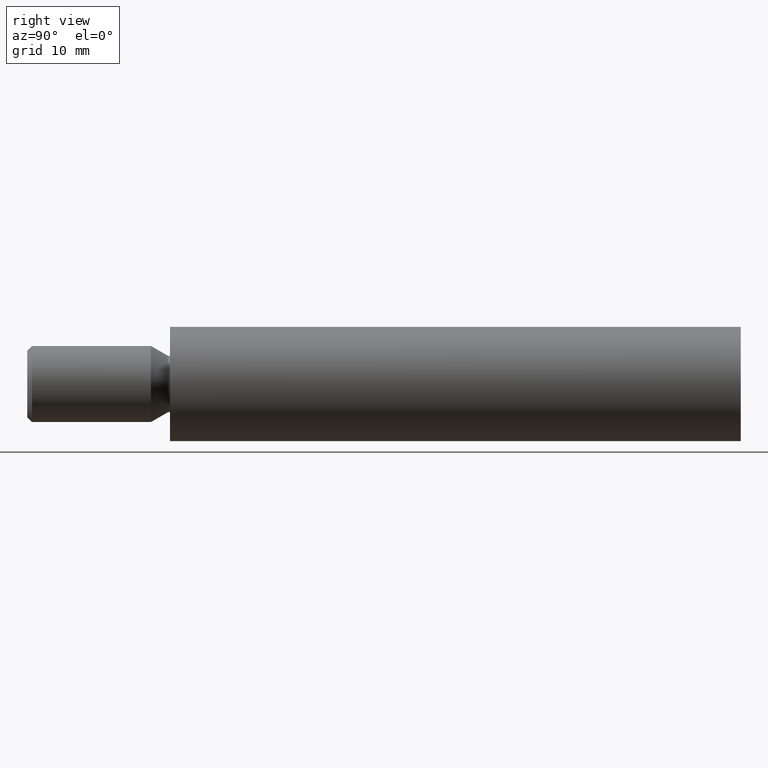
[diagram: clean part render]
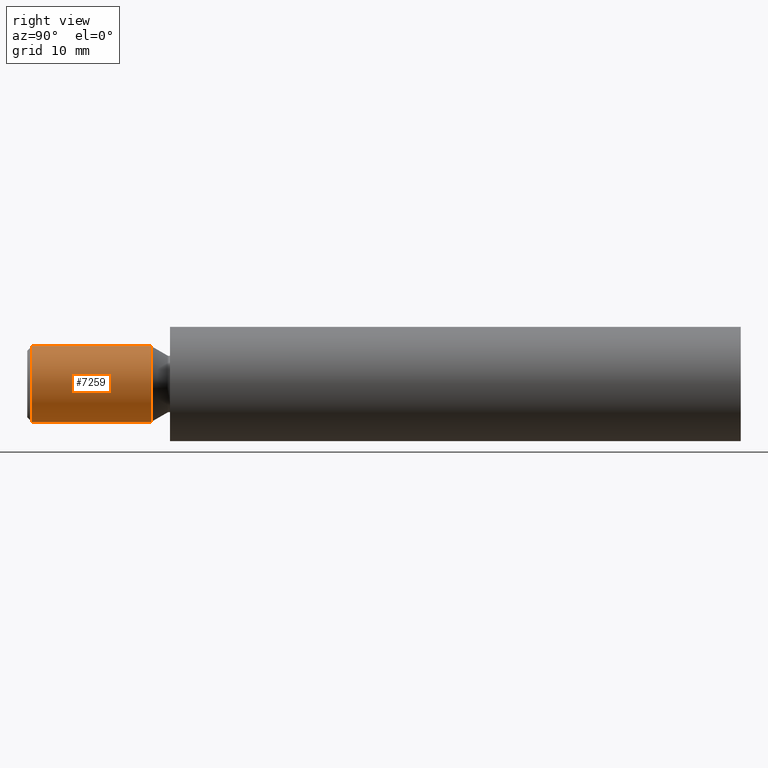
[diagram: same view with one face highlighted and labeled with its STEP entity id]
A machine part, right view. The second image highlights one B-rep face of the part: STEP entity #7259.
In plain terms, the highlighted cylindrical surface (partial cylindrical patch) has radius 4 mm, axis along (-0, -1, -0).
Its self-contained STEP definition (entity closure, byte-faithful):
#721 = ORIENTED_EDGE ( 'NONE', *, *, #3128, .T. ) ;
#856 = AXIS2_PLACEMENT_3D ( 'NONE', #8355, #9517, #9618 ) ;
#1091 = CARTESIAN_POINT ( 'NONE',  ( 0.0000000000000000000, -15.00000000000000000, -4.000000000000000900 ) ) ;
#1423 = CARTESIAN_POINT ( 'NONE',  ( 0.0000000000000000000, -14.50000000000002300, -4.000000000000000900 ) ) ;
#1773 = CIRCLE ( 'NONE', #5036, 4.000000000000000900 ) ;
#2719 = EDGE_CURVE ( 'NONE', #12679, #9846, #9949, .T. ) ;
#2736 = DIRECTION ( 'NONE',  ( -0.0000000000000000000, -1.000000000000000000, -0.0000000000000000000 ) ) ;
#2940 = EDGE_LOOP ( 'NONE', ( #6827, #721, #12033, #9579 ) ) ;
#3128 = EDGE_CURVE ( 'NONE', #9846, #9446, #3157, .T. ) ;
#3157 = LINE ( 'NONE', #12305, #14639 ) ;
#3794 = DIRECTION ( 'NONE',  ( 0.0000000000000000000, 0.0000000000000000000, -1.000000000000000000 ) ) ;
#4606 = CYLINDRICAL_SURFACE ( 'NONE', #856, 4.000000000000000900 ) ;
#5036 = AXIS2_PLACEMENT_3D ( 'NONE', #11036, #8833, #14540 ) ;
#5329 = LINE ( 'NONE', #1091, #7987 ) ;
#5622 = DIRECTION ( 'NONE',  ( -0.0000000000000000000, -1.000000000000000000, -0.0000000000000000000 ) ) ;
#6713 = EDGE_CURVE ( 'NONE', #9446, #13839, #1773, .T. ) ;
#6827 = ORIENTED_EDGE ( 'NONE', *, *, #2719, .T. ) ;
#7259 = ADVANCED_FACE ( 'NONE', ( #10153 ), #4606, .T. ) ;
#7760 = EDGE_CURVE ( 'NONE', #12679, #13839, #5329, .T. ) ;
#7987 = VECTOR ( 'NONE', #5622, 1000.000000000000000 ) ;
#8355 = CARTESIAN_POINT ( 'NONE',  ( 0.0000000000000000000, -15.00000000000000000, 0.0000000000000000000 ) ) ;
#8833 = DIRECTION ( 'NONE',  ( 0.0000000000000000000, 1.000000000000000000, 0.0000000000000000000 ) ) ;
#9446 = VERTEX_POINT ( 'NONE', #14516 ) ;
#9517 = DIRECTION ( 'NONE',  ( -0.0000000000000000000, -1.000000000000000000, -0.0000000000000000000 ) ) ;
#9579 = ORIENTED_EDGE ( 'NONE', *, *, #7760, .F. ) ;
#9618 = DIRECTION ( 'NONE',  ( 0.0000000000000000000, 0.0000000000000000000, -1.000000000000000000 ) ) ;
#9846 = VERTEX_POINT ( 'NONE', #10586 ) ;
#9949 = CIRCLE ( 'NONE', #10818, 4.000000000000000000 ) ;
#10153 = FACE_OUTER_BOUND ( 'NONE', #2940, .T. ) ;
#10586 = CARTESIAN_POINT ( 'NONE',  ( 4.898587196589413800E-016, -2.000000000000000000, 4.000000000000000000 ) ) ;
#10818 = AXIS2_PLACEMENT_3D ( 'NONE', #12022, #2736, #3794 ) ;
#11036 = CARTESIAN_POINT ( 'NONE',  ( 0.0000000000000000000, -14.50000000000002300, 0.0000000000000000000 ) ) ;
#11922 = CARTESIAN_POINT ( 'NONE',  ( 0.0000000000000000000, -2.000000000000000000, -4.000000000000000000 ) ) ;
#12022 = CARTESIAN_POINT ( 'NONE',  ( 0.0000000000000000000, -2.000000000000000000, 0.0000000000000000000 ) ) ;
#12033 = ORIENTED_EDGE ( 'NONE', *, *, #6713, .T. ) ;
#12305 = CARTESIAN_POINT ( 'NONE',  ( 4.898587196589413800E-016, -15.00000000000000000, 4.000000000000000900 ) ) ;
#12679 = VERTEX_POINT ( 'NONE', #11922 ) ;
#13839 = VERTEX_POINT ( 'NONE', #1423 ) ;
#14516 = CARTESIAN_POINT ( 'NONE',  ( 4.898587196589413800E-016, -14.50000000000002300, 4.000000000000000900 ) ) ;
#14540 = DIRECTION ( 'NONE',  ( 0.0000000000000000000, 0.0000000000000000000, -1.000000000000000000 ) ) ;
#14571 = DIRECTION ( 'NONE',  ( -0.0000000000000000000, -1.000000000000000000, -0.0000000000000000000 ) ) ;
#14639 = VECTOR ( 'NONE', #14571, 1000.000000000000000 ) ;